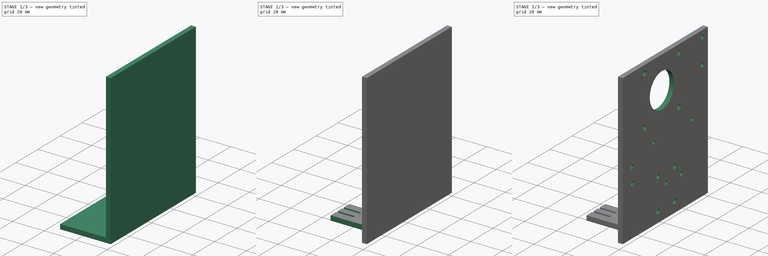
[diagram: build sequence overview — one tinted view per stage of 3, left to right]
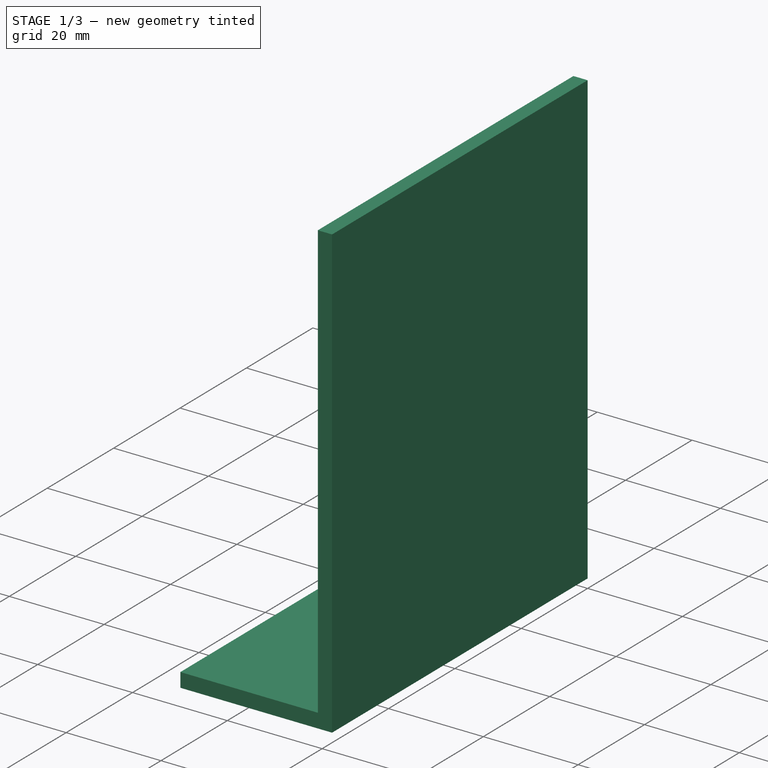
[diagram: stage 1 of 3 — iso view after this stage's code; geometry added in this stage tinted green]
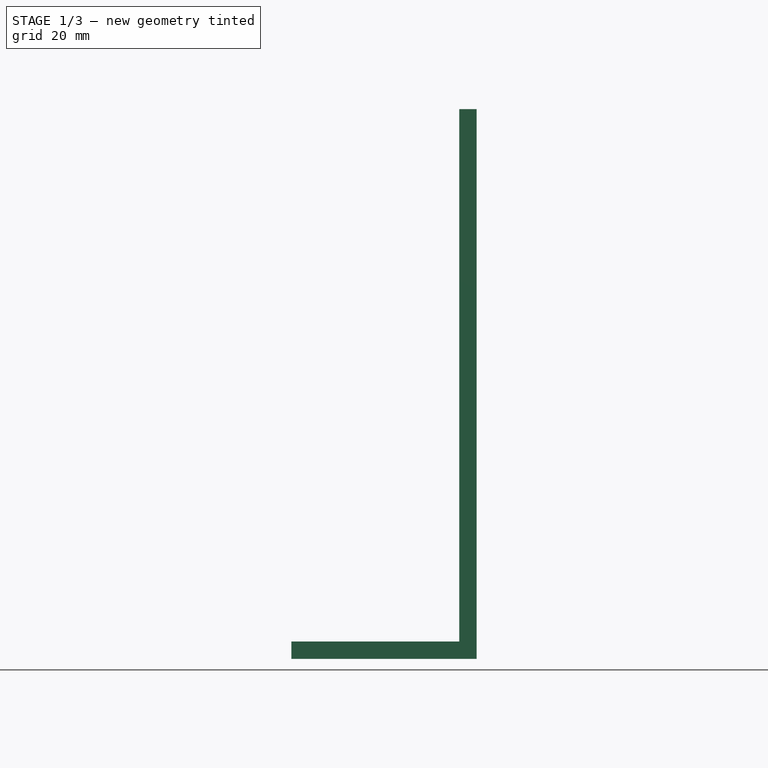
[diagram: stage 1 of 3 — front view after this stage's code; geometry added in this stage tinted green]
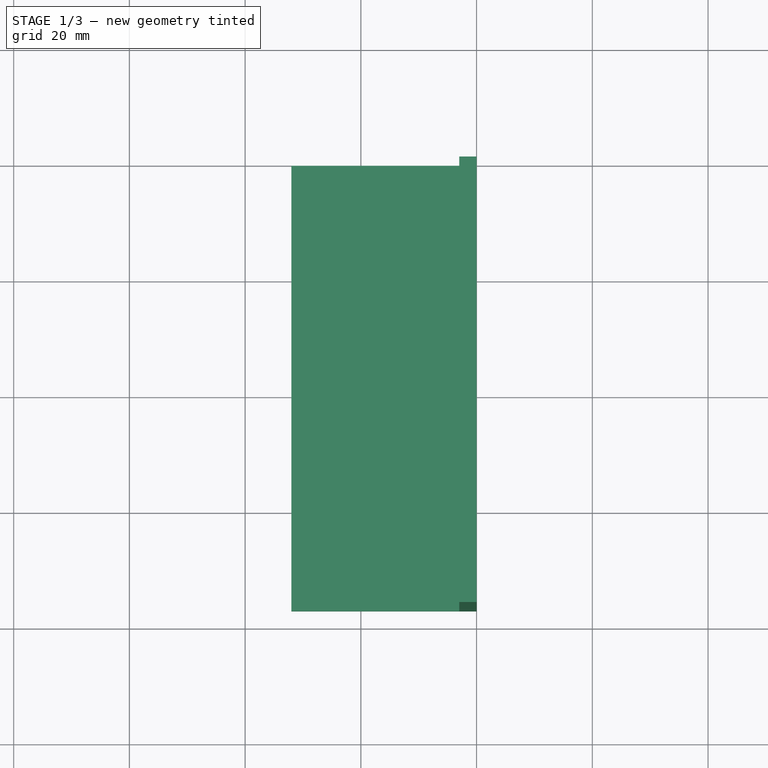
[diagram: stage 1 of 3 — top view after this stage's code; geometry added in this stage tinted green]
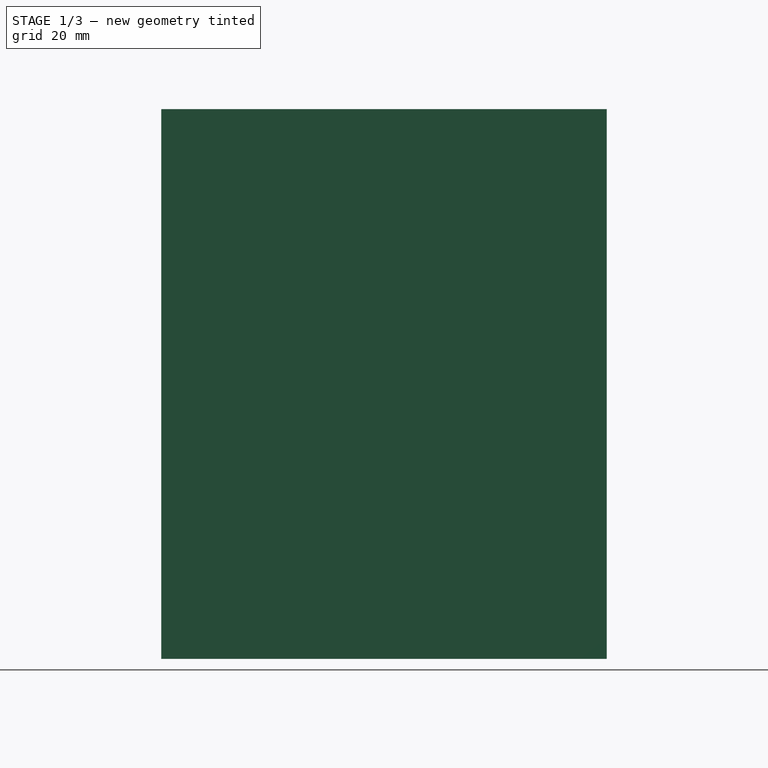
[diagram: stage 1 of 3 — right view after this stage's code; geometry added in this stage tinted green]
FCSTD DOCUMENT  (FreeCAD 0.19R)
Label: 3d_direct
License: All rights reserved
LicenseURL: http://en.wikipedia.org/wiki/All_rights_reserved
objects: Sketcher::SketchObject×5, PartDesign::Pocket×4, PartDesign::Pad×1, PartDesign::Body×1
note: 16 computed .brp shape members not serialized (recipe doc carries the construction recipe); baked Part::Feature solids carry a one-line shape summary decoded from their .brp

FEATURE [Sketcher::SketchObject] Sketch
  FullyConstrained = true
  MapMode = 5
  Placement = pos=(0,0,0) rot=(1,0,0;1.5708rad)
  Support = -> [XZ_Plane]
  sketch-geometry (4):
    g0: LineSegment StartX=0 StartY=0 StartZ=0 EndX=-32 EndY=0 EndZ=0
    g1: LineSegment StartX=-32 StartY=0 StartZ=0 EndX=-32 EndY=95 EndZ=0
    g2: LineSegment StartX=-32 StartY=95 StartZ=0 EndX=0 EndY=95 EndZ=0
    g3: LineSegment StartX=0 StartY=95 StartZ=0 EndX=0 EndY=0 EndZ=0
  constraints (11):
    c: Coincident(g0,g1)
    c: Coincident(g1,g2)
    c: Coincident(g2,g3)
    c: Coincident(g3,g0)
    c: Horizontal(g0)
    c: Horizontal(g2)
    c: Vertical(g1)
    c: Vertical(g3)
    c: Coincident(g0,g-1)
    c: DistanceY(g0,g2) = 95
    c: DistanceX(g0,g0) = 32
FEATURE [PartDesign::Pad] Pad
  Direction = (1,1,1)
  Length = 77
  Length2 = 100
  Placement = pos=(0,0,0) rot=(1,0,0;1.5708rad)
  Profile = -> Sketch
  Type = 0
FEATURE [Sketcher::SketchObject] Sketch001
  ExternalGeometry = -> [Pad]
  FullyConstrained = false
  MapMode = 5
  Placement = pos=(0,0,0) rot=(-1,0,0;1.5708rad)
  Support = -> [Pad]
  sketch-geometry (4):
    g0: LineSegment StartX=-3 StartY=-3 StartZ=0 EndX=-3 EndY=-95 EndZ=0
    g1: LineSegment StartX=-3 StartY=-95 StartZ=0 EndX=-32 EndY=-95 EndZ=0
    g2: LineSegment StartX=-32 StartY=-95 StartZ=0 EndX=-32 EndY=-3 EndZ=0
    g3: LineSegment StartX=-32 StartY=-3 StartZ=0 EndX=-3 EndY=-3 EndZ=0
  constraints (8):
    c: Coincident(g0,g1)
    c: Coincident(g1,g2)
    c: Horizontal(g1)
    c: Vertical(g0)
    c: Vertical(g2)
    c: Coincident(g3,g2)
    c: Coincident(g3,g0)
    c: Horizontal(g3)
FEATURE [PartDesign::Pocket] Pocket
  BaseFeature = -> Pad
  Length = 5
  Length2 = 100
  Placement = pos=(0,0,0) rot=(1,0,0;1.5708rad)
  Profile = -> Sketch001
  Type = 1
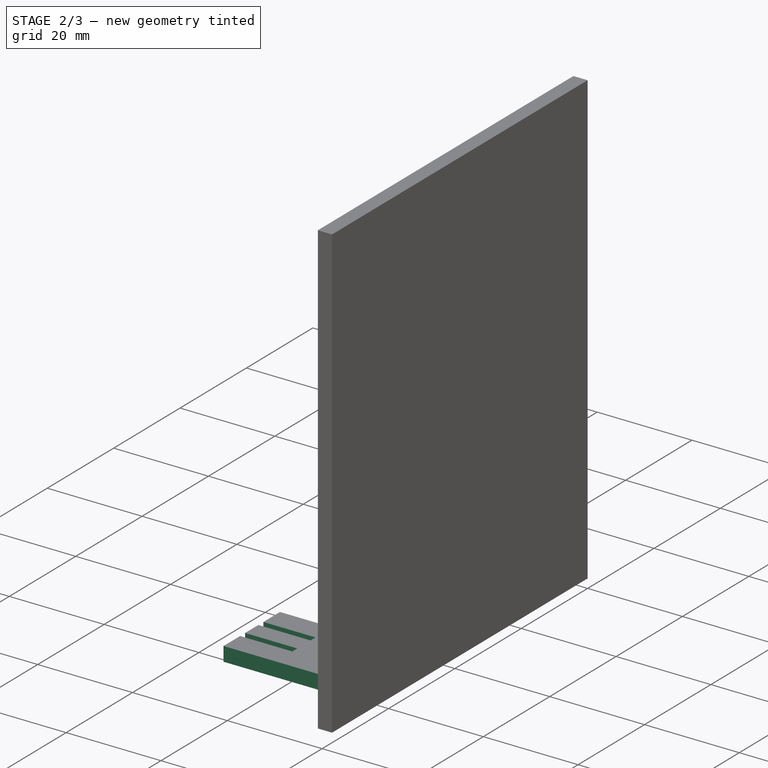
[diagram: stage 2 of 3 — iso view after this stage's code; geometry added in this stage tinted green]
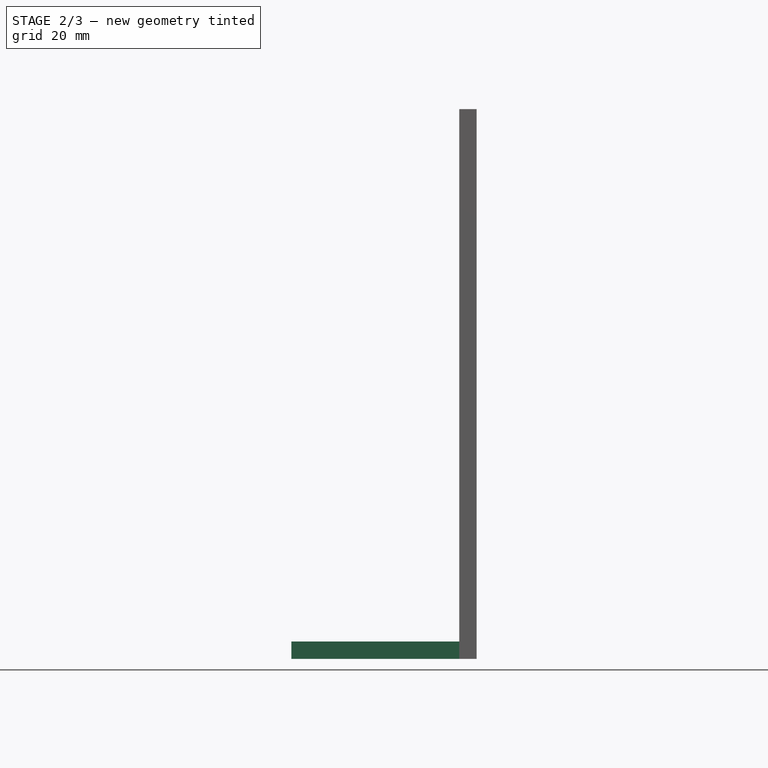
[diagram: stage 2 of 3 — front view after this stage's code; geometry added in this stage tinted green]
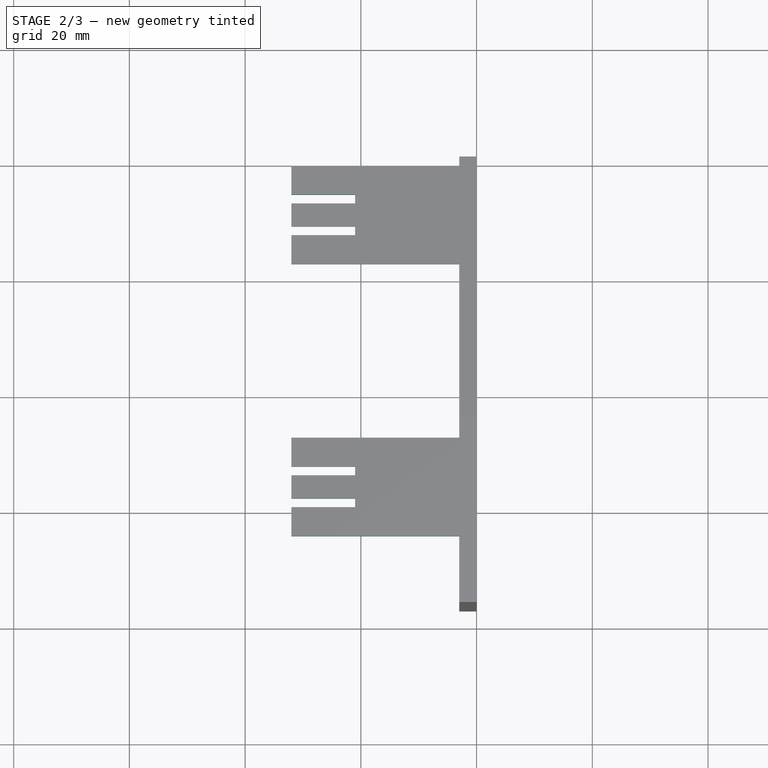
[diagram: stage 2 of 3 — top view after this stage's code; geometry added in this stage tinted green]
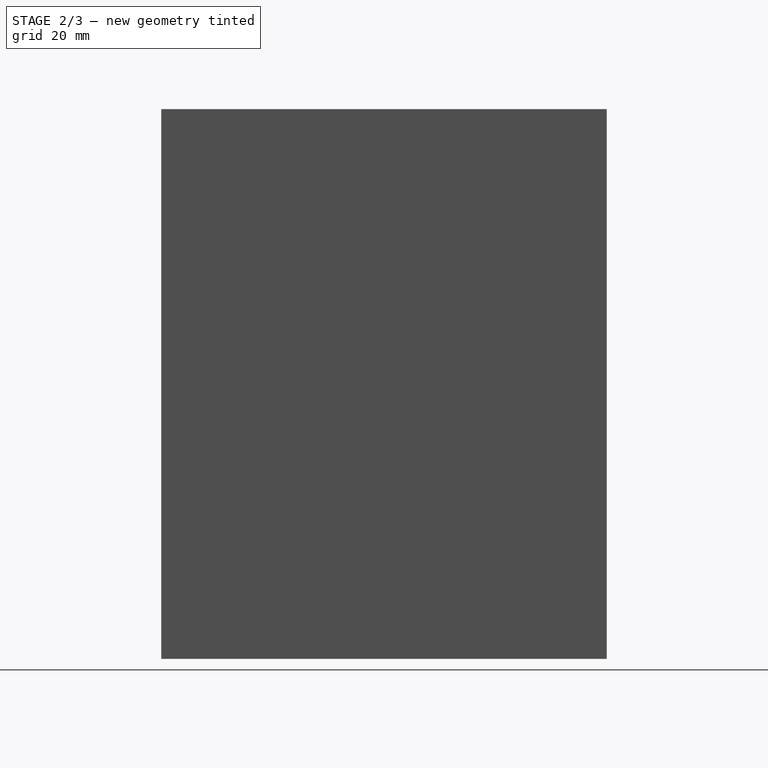
[diagram: stage 2 of 3 — right view after this stage's code; geometry added in this stage tinted green]
FEATURE [Sketcher::SketchObject] Sketch002
  ExternalGeometry = -> [Pocket]
  FullyConstrained = true
  MapMode = 5
  Placement = pos=(0,0,0) rot=(1,0,0;3.14159rad)
  Support = -> [Pocket]
  sketch-geometry (60):
    g0: LineSegment StartX=-32 StartY=0 StartZ=0 EndX=-21 EndY=0 EndZ=0
    g1: LineSegment StartX=-21 StartY=0 StartZ=0 EndX=-21 EndY=17 EndZ=0
    g2: LineSegment StartX=-21 StartY=17 StartZ=0 EndX=-32 EndY=17 EndZ=0
    g3: LineSegment StartX=-32 StartY=17 StartZ=0 EndX=-32 EndY=0 EndZ=0
    g4: LineSegment StartX=-21 StartY=0 StartZ=0 EndX=-32 EndY=0 EndZ=0
    g5: LineSegment StartX=-32 StartY=0 StartZ=0 EndX=-32 EndY=5 EndZ=0
    g6: LineSegment StartX=-32 StartY=5 StartZ=0 EndX=-21 EndY=5 EndZ=0
    g7: LineSegment StartX=-21 StartY=5 StartZ=0 EndX=-21 EndY=0 EndZ=0
    g8: LineSegment StartX=-21 StartY=17 StartZ=0 EndX=-32 EndY=17 EndZ=0
    g9: LineSegment StartX=-32 StartY=17 StartZ=0 EndX=-32 EndY=12 EndZ=0
    g10: LineSegment StartX=-32 StartY=12 StartZ=0 EndX=-21 EndY=12 EndZ=0
    g11: LineSegment StartX=-21 StartY=12 StartZ=0 EndX=-21 EndY=17 EndZ=0
    g12: LineSegment StartX=-32 StartY=12 StartZ=0 EndX=-21 EndY=12 EndZ=0
    g13: LineSegment StartX=-21 StartY=12 StartZ=0 EndX=-21 EndY=10.5 EndZ=0
    g14: LineSegment StartX=-21 StartY=10.5 StartZ=0 EndX=-32 EndY=10.5 EndZ=0
    g15: LineSegment StartX=-32 StartY=10.5 StartZ=0 EndX=-32 EndY=12 EndZ=0
    g16: LineSegment StartX=-32 StartY=5 StartZ=0 EndX=-21 EndY=5 EndZ=0
    g17: LineSegment StartX=-21 StartY=5 StartZ=0 EndX=-21 EndY=6.5 EndZ=0
    g18: LineSegment StartX=-21 StartY=6.5 StartZ=0 EndX=-32 EndY=6.5 EndZ=0
    g19: LineSegment StartX=-32 StartY=6.5 StartZ=0 EndX=-32 EndY=5 EndZ=0
    g20: LineSegment StartX=-32 StartY=0 StartZ=0 EndX=0 EndY=0 EndZ=0
    g21: LineSegment StartX=0 StartY=0 StartZ=0 EndX=0 EndY=64 EndZ=0
    g22: LineSegment StartX=0 StartY=64 StartZ=0 EndX=-32 EndY=64 EndZ=0
    g23: LineSegment StartX=-32 StartY=64 StartZ=0 EndX=-32 EndY=0 EndZ=0
    g24: LineSegment StartX=-32 StartY=64 StartZ=0 EndX=-21 EndY=64 EndZ=0
    g25: LineSegment StartX=-21 StartY=64 StartZ=0 EndX=-21 EndY=47 EndZ=0
    g26: LineSegment StartX=-21 StartY=47 StartZ=0 EndX=-32 EndY=47 EndZ=0
    g27: LineSegment StartX=-32 StartY=47 StartZ=0 EndX=-32 EndY=64 EndZ=0
    g28: LineSegment StartX=-32 StartY=47 StartZ=0 EndX=-21 EndY=47 EndZ=0
    g29: LineSegment StartX=-21 StartY=47 StartZ=0 EndX=-21 EndY=52 EndZ=0
    g30: LineSegment StartX=-21 StartY=52 StartZ=0 EndX=-32 EndY=52 EndZ=0
    g31: LineSegment StartX=-32 StartY=52 StartZ=0 EndX=-32 EndY=47 EndZ=0
    g32: LineSegment StartX=-32 StartY=64 StartZ=0 EndX=-21 EndY=64 EndZ=0
    g33: LineSegment StartX=-21 StartY=64 StartZ=0 EndX=-21 EndY=59 EndZ=0
    g34: LineSegment StartX=-21 StartY=59 StartZ=0 EndX=-32 EndY=59 EndZ=0
    g35: LineSegment StartX=-32 StartY=59 StartZ=0 EndX=-32 EndY=64 EndZ=0
    g36: LineSegment StartX=-32 StartY=59 StartZ=0 EndX=-21 EndY=59 EndZ=0
    g37: LineSegment StartX=-21 StartY=59 StartZ=0 EndX=-21 EndY=57.5 EndZ=0
    g38: LineSegment StartX=-21 StartY=57.5 StartZ=0 EndX=-32 EndY=57.5 EndZ=0
    g39: LineSegment StartX=-32 StartY=57.5 StartZ=0 EndX=-32 EndY=59 EndZ=0
    g40: LineSegment StartX=-32 StartY=52 StartZ=0 EndX=-21 EndY=52 EndZ=0
    g41: LineSegment StartX=-21 StartY=52 StartZ=0 EndX=-21 EndY=53.5 EndZ=0
    g42: LineSegment StartX=-21 StartY=53.5 StartZ=0 EndX=-32 EndY=53.5 EndZ=0
    g43: LineSegment StartX=-32 StartY=53.5 StartZ=0 EndX=-32 EndY=52 EndZ=0
    g44: LineSegment StartX=0 StartY=0 StartZ=0 EndX=-3 EndY=0 EndZ=0
    g45: LineSegment StartX=-3 StartY=0 StartZ=0 EndX=-3 EndY=17 EndZ=0
    g46: LineSegment StartX=-3 StartY=17 StartZ=0 EndX=0 EndY=17 EndZ=0
    g47: LineSegment StartX=0 StartY=17 StartZ=0 EndX=0 EndY=0 EndZ=0
    g48: LineSegment StartX=-3 StartY=17 StartZ=0 EndX=-32 EndY=17 EndZ=0
    g49: LineSegment StartX=-32 StartY=17 StartZ=0 EndX=-32 EndY=47 EndZ=0
    g50: LineSegment StartX=-32 StartY=47 StartZ=0 EndX=-3 EndY=47 EndZ=0
    g51: LineSegment StartX=-3 StartY=47 StartZ=0 EndX=-3 EndY=17 EndZ=0
    g52: LineSegment StartX=0 StartY=64 StartZ=0 EndX=-3 EndY=64 EndZ=0
    g53: LineSegment StartX=-3 StartY=64 StartZ=0 EndX=-3 EndY=77 EndZ=0
    g54: LineSegment StartX=-3 StartY=77 StartZ=0 EndX=0 EndY=77 EndZ=0
    g55: LineSegment StartX=0 StartY=77 StartZ=0 EndX=0 EndY=64 EndZ=0
    g56: LineSegment StartX=-3 StartY=77 StartZ=0 EndX=-32 EndY=77 EndZ=0
    g57: LineSegment StartX=-32 StartY=77 StartZ=0 EndX=-32 EndY=64 EndZ=0
    g58: LineSegment StartX=-32 StartY=64 StartZ=0 EndX=-3 EndY=64 EndZ=0
    g59: LineSegment StartX=-3 StartY=64 StartZ=0 EndX=-3 EndY=77 EndZ=0
  constraints (163):
    c: Coincident(g0,g1)
    c: Coincident(g1,g2)
    c: Coincident(g2,g3)
    c: Coincident(g3,g0)
    c: Horizontal(g0)
    c: Horizontal(g2)
    c: Vertical(g1)
    c: Vertical(g3)
    c: Coincident(g0,g-4)
    c: DistanceY(g3,g3) = 17
    c: DistanceX(g0,g0) = 11
    c: Coincident(g4,g5)
    c: Coincident(g5,g6)
    c: Coincident(g6,g7)
    c: Coincident(g7,g4)
    c: Horizontal(g4)
    c: Horizontal(g6)
    c: Vertical(g5)
    c: Vertical(g7)
    c: Coincident(g4,g0)
    c: PointOnObject(g5,g3)
    c: Coincident(g8,g9)
    c: Coincident(g9,g10)
    c: Coincident(g10,g11)
    c: Coincident(g11,g8)
    c: Horizontal(g8)
    c: Horizontal(g10)
    c: Vertical(g9)
    c: Vertical(g11)
    c: Coincident(g8,g1)
    c: PointOnObject(g9,g3)
    c: Distance(g6,g0) = 5
    c: Distance(g10,g1) = 5
    c: Coincident(g12,g13)
    c: Coincident(g13,g14)
    c: Coincident(g14,g15)
    c: Coincident(g15,g12)
    c: Horizontal(g12)
    c: Horizontal(g14)
    c: Vertical(g13)
    c: Vertical(g15)
    c: Coincident(g12,g9)
    c: PointOnObject(g13,g1)
    c: Coincident(g16,g17)
    c: Coincident(g17,g18)
    c: Coincident(g18,g19)
    c: Coincident(g19,g16)
    c: Horizontal(g16)
    c: Horizontal(g18)
    c: Vertical(g17)
    c: Vertical(g19)
    c: Coincident(g16,g5)
    c: PointOnObject(g17,g1)
    c: DistanceY(g15,g15) = 1.5
    c: DistanceY(g19,g19) = 1.5
    c: Coincident(g20,g21)
    c: Coincident(g21,g22)
    c: Coincident(g22,g23)
    c: Coincident(g23,g20)
    c: Horizontal(g20)
    c: Horizontal(g22)
    c: Vertical(g21)
    c: Vertical(g23)
    c: Coincident(g20,g0)
    c: PointOnObject(g21,g-2)
    c: DistanceY(g21,g21) = 64
    c: Coincident(g24,g25)
    c: Coincident(g25,g26)
    c: Coincident(g26,g27)
    c: Coincident(g27,g24)
    c: Horizontal(g24)
    c: Horizontal(g26)
    c: Vertical(g25)
    c: Vertical(g27)
    c: Coincident(g24,g22)
    c: DistanceY(g25,g25) = 17
    c: DistanceX(g26,g26) = 11
    c: Coincident(g28,g29)
    c: Coincident(g29,g30)
    c: Coincident(g30,g31)
    c: Coincident(g31,g28)
    c: Horizontal(g28)
    c: Horizontal(g30)
    c: Vertical(g29)
    c: Vertical(g31)
    c: Coincident(g28,g26)
    c: PointOnObject(g29,g25)
    c: Coincident(g32,g33)
    c: Coincident(g33,g34)
    c: Coincident(g34,g35)
    c: Coincident(g35,g32)
    c: Horizontal(g32)
    c: Horizontal(g34)
    c: Vertical(g33)
    c: Vertical(g35)
    c: Coincident(g32,g22)
    c: PointOnObject(g33,g25)
    c: Distance(g29,g25) = 5
    c: Distance(g33,g24) = 5
    c: Coincident(g36,g37)
    c: Coincident(g37,g38)
    c: Coincident(g38,g39)
    c: Coincident(g39,g36)
    c: Horizontal(g36)
    c: Horizontal(g38)
    c: Vertical(g37)
    c: Vertical(g39)
    c: Coincident(g36,g34)
    c: PointOnObject(g37,g25)
    c: Coincident(g40,g41)
    c: Coincident(g41,g42)
    c: Coincident(g42,g43)
    c: Coincident(g43,g40)
    c: Horizontal(g40)
    c: Horizontal(g42)
    c: Vertical(g41)
    c: Vertical(g43)
    c: Coincident(g40,g30)
    c: PointOnObject(g41,g25)
    c: DistanceY(g43,g43) = 1.5
    c: DistanceY(g39,g39) = 1.5
    c: Coincident(g44,g45)
    c: Coincident(g45,g46)
    c: Coincident(g46,g47)
    c: Coincident(g47,g44)
    c: Horizontal(g44)
    c: Horizontal(g46)
    c: Vertical(g45)
    c: Vertical(g47)
    c: Coincident(g44,g-1)
    c: DistanceY(g45,g45) = 17
    c: DistanceX(g46,g46) = 3
    c: Coincident(g48,g49)
    c: Coincident(g49,g50)
    c: Coincident(g50,g51)
    c: Coincident(g51,g48)
    c: Horizontal(g48)
    c: Horizontal(g50)
    c: Vertical(g49)
    c: Vertical(g51)
    c: Coincident(g48,g45)
    c: Coincident(g49,g26)
    c: Coincident(g52,g53)
    c: Coincident(g53,g54)
    c: Coincident(g54,g55)
    c: Coincident(g55,g52)
    c: Horizontal(g52)
    c: Horizontal(g54)
    c: Vertical(g53)
    c: Vertical(g55)
    c: Coincident(g52,g21)
    c: PointOnObject(g53,g-3)
    c: DistanceX(g54,g54) = 3
    c: Coincident(g56,g57)
    c: Coincident(g57,g58)
    c: Coincident(g58,g59)
    c: Coincident(g59,g56)
    c: Horizontal(g56)
    c: Horizontal(g58)
    c: Vertical(g57)
    c: Vertical(g59)
    c: Coincident(g56,g53)
    c: Coincident(g57,g22)
FEATURE [PartDesign::Pocket] Pocket001
  BaseFeature = -> Pocket
  Length = 5
  Length2 = 100
  Placement = pos=(0,0,0) rot=(1,0,0;1.5708rad)
  Profile = -> Sketch002
  Type = 1
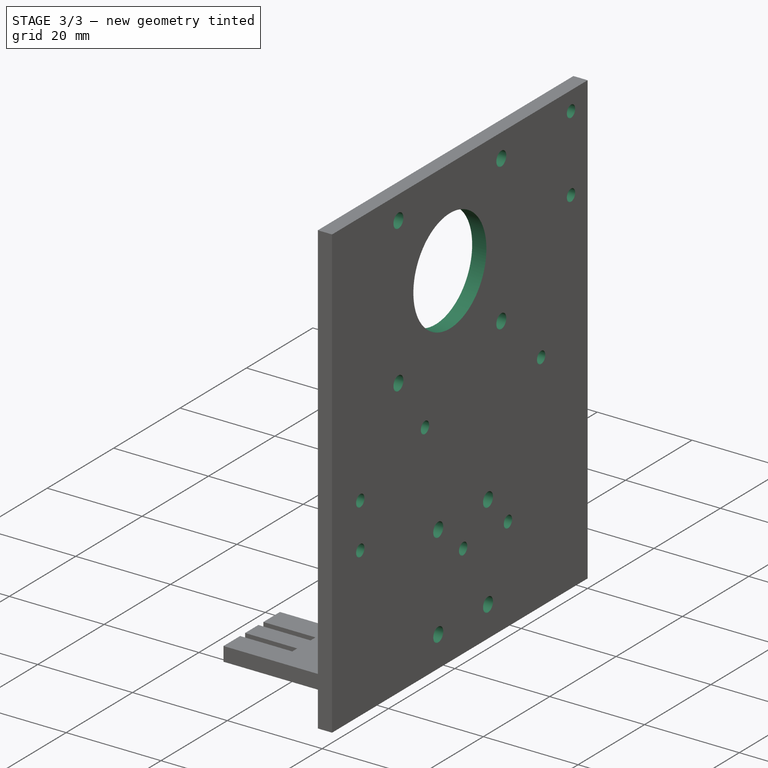
[diagram: stage 3 of 3 — iso view after this stage's code; geometry added in this stage tinted green]
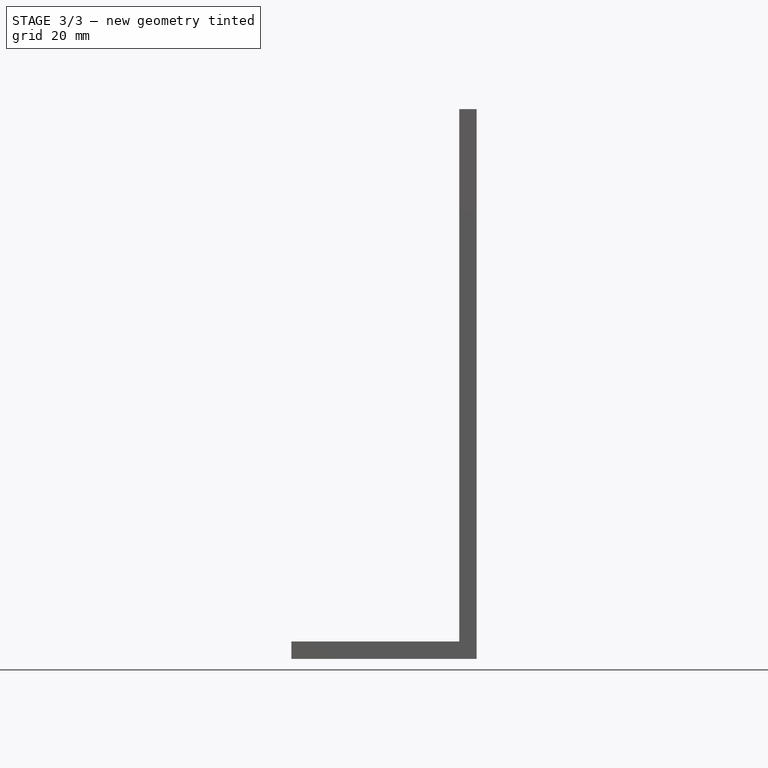
[diagram: stage 3 of 3 — front view after this stage's code; geometry added in this stage tinted green]
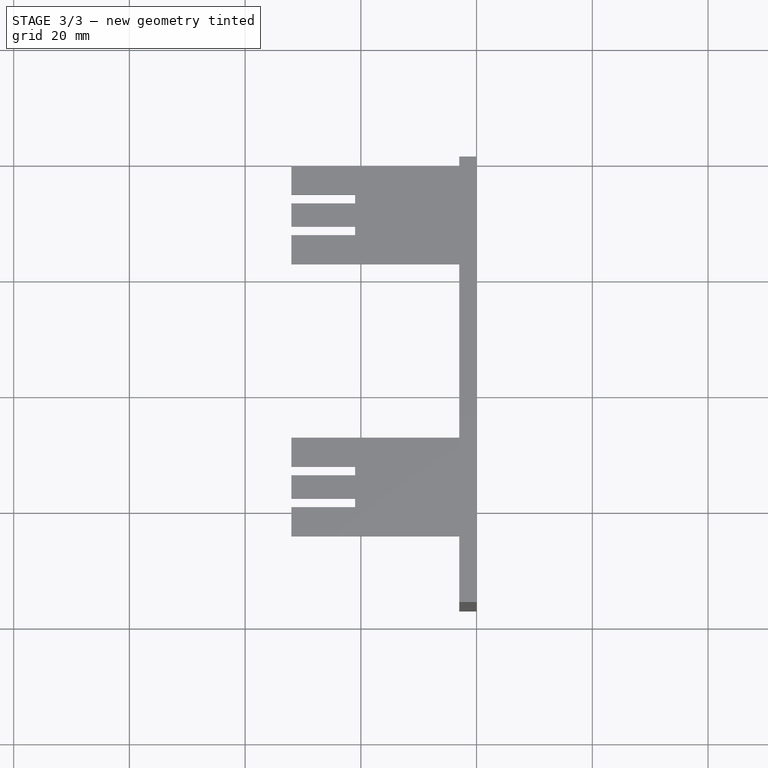
[diagram: stage 3 of 3 — top view after this stage's code; geometry added in this stage tinted green]
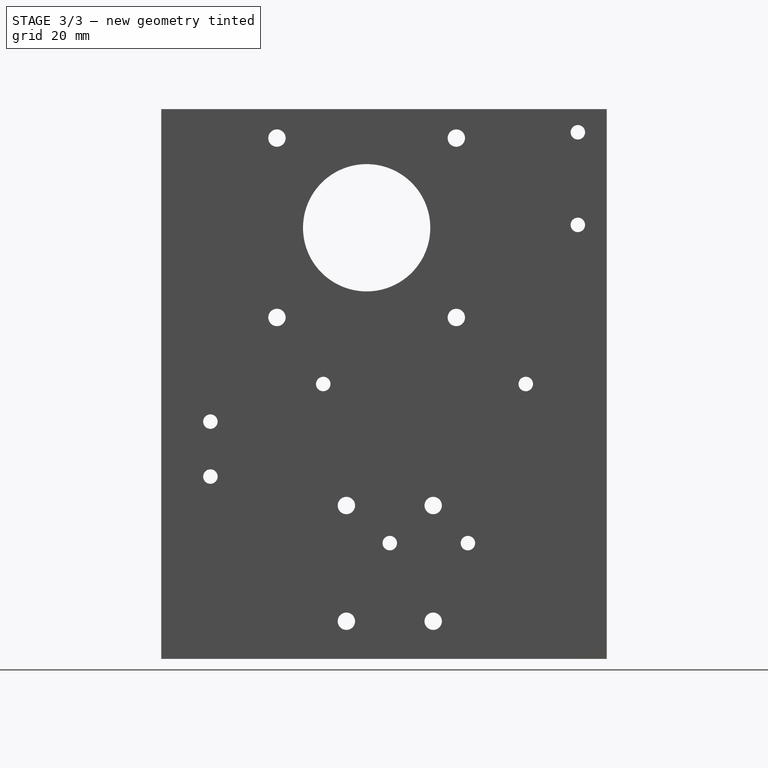
[diagram: stage 3 of 3 — right view after this stage's code; geometry added in this stage tinted green]
FEATURE [Sketcher::SketchObject] Sketch003
  FullyConstrained = true
  MapMode = 5
  Placement = pos=(0,0,0) rot=(0.707107,0,0.707107;3.14159rad)
  Support = -> [Pocket001]
  sketch-geometry (52):
    g0: LineSegment StartX=0 StartY=0 StartZ=0 EndX=20 EndY=0 EndZ=0
    g1: LineSegment StartX=20 StartY=0 StartZ=0 EndX=20 EndY=24 EndZ=0
    g2: LineSegment StartX=20 StartY=24 StartZ=0 EndX=0 EndY=24 EndZ=0
    g3: LineSegment StartX=0 StartY=24 StartZ=0 EndX=0 EndY=0 EndZ=0
    g4: LineSegment StartX=0 StartY=24 StartZ=0 EndX=20 EndY=24 EndZ=0
    g5: LineSegment StartX=20 StartY=24 StartZ=0 EndX=20 EndY=37.5 EndZ=0
    g6: LineSegment StartX=20 StartY=37.5 StartZ=0 EndX=0 EndY=37.5 EndZ=0
    g7: LineSegment StartX=0 StartY=37.5 StartZ=0 EndX=0 EndY=24 EndZ=0
    g8: Circle CenterX=20 CenterY=37.5 CenterZ=0 NormalX=0 NormalY=0 NormalZ=1 AngleXU=0 Radius=1.25
    g9: Circle CenterX=20 CenterY=24 CenterZ=0 NormalX=0 NormalY=0 NormalZ=1 AngleXU=0 Radius=1.25
    g10: LineSegment StartX=0 StartY=0 StartZ=0 EndX=47.5 EndY=0 EndZ=0
    g11: LineSegment StartX=47.5 StartY=0 StartZ=0 EndX=47.5 EndY=14 EndZ=0
    g12: LineSegment StartX=47.5 StartY=14 StartZ=0 EndX=0 EndY=14 EndZ=0
    g13: LineSegment StartX=0 StartY=14 StartZ=0 EndX=0 EndY=0 EndZ=0
    g14: LineSegment StartX=0 StartY=14 StartZ=0 EndX=47.5 EndY=14 EndZ=0
    g15: LineSegment StartX=47.5 StartY=14 StartZ=0 EndX=47.5 EndY=49 EndZ=0
    g16: LineSegment StartX=47.5 StartY=49 StartZ=0 EndX=0 EndY=49 EndZ=0
    g17: LineSegment StartX=0 StartY=49 StartZ=0 EndX=0 EndY=14 EndZ=0
    g18: Circle CenterX=47.5 CenterY=49 CenterZ=0 NormalX=0 NormalY=0 NormalZ=1 AngleXU=0 Radius=1.25
    g19: Circle CenterX=47.5 CenterY=14 CenterZ=0 NormalX=0 NormalY=0 NormalZ=1 AngleXU=0 Radius=1.25
    g20: LineSegment StartX=0 StartY=0 StartZ=0 EndX=59 EndY=0 EndZ=0
    g21: LineSegment StartX=59 StartY=0 StartZ=0 EndX=59 EndY=26 EndZ=0
    g22: LineSegment StartX=59 StartY=26 StartZ=0 EndX=0 EndY=26 EndZ=0
    g23: LineSegment StartX=0 StartY=26 StartZ=0 EndX=0 EndY=0 EndZ=0
    g24: LineSegment StartX=59 StartY=26 StartZ=0 EndX=90 EndY=26 EndZ=0
    g25: LineSegment StartX=90 StartY=26 StartZ=0 EndX=90 EndY=57 EndZ=0
    g26: LineSegment StartX=90 StartY=57 StartZ=0 EndX=59 EndY=57 EndZ=0
    g27: LineSegment StartX=59 StartY=57 StartZ=0 EndX=59 EndY=26 EndZ=0
    g28: Circle CenterX=59 CenterY=57 CenterZ=0 NormalX=0 NormalY=0 NormalZ=1 AngleXU=0 Radius=1.5
    g29: Circle CenterX=90 CenterY=57 CenterZ=0 NormalX=0 NormalY=0 NormalZ=1 AngleXU=0 Radius=1.5
    g30: Circle CenterX=90 CenterY=26 CenterZ=0 NormalX=0 NormalY=0 NormalZ=1 AngleXU=0 Radius=1.5
    g31: Circle CenterX=59 CenterY=26 CenterZ=0 NormalX=0 NormalY=0 NormalZ=1 AngleXU=0 Radius=1.5
    g32: LineSegment StartX=59 StartY=57 StartZ=0 EndX=90 EndY=26 EndZ=0
    g33: LineSegment StartX=90 StartY=57 StartZ=0 EndX=59 EndY=26 EndZ=0
    g34: Circle CenterX=74.5 CenterY=41.5 CenterZ=0 NormalX=0 NormalY=0 NormalZ=1 AngleXU=0 Radius=11
    g35: LineSegment StartX=0 StartY=0 StartZ=0 EndX=75 EndY=0 EndZ=0
    g36: LineSegment StartX=75 StartY=0 StartZ=0 EndX=75 EndY=5 EndZ=0
    g37: LineSegment StartX=75 StartY=5 StartZ=0 EndX=0 EndY=5 EndZ=0
    g38: LineSegment StartX=0 StartY=5 StartZ=0 EndX=0 EndY=0 EndZ=0
    g39: LineSegment StartX=75 StartY=0 StartZ=0 EndX=91 EndY=0 EndZ=0
    g40: LineSegment StartX=91 StartY=0 StartZ=0 EndX=91 EndY=5 EndZ=0
    g41: LineSegment StartX=91 StartY=5 StartZ=0 EndX=75 EndY=5 EndZ=0
    g42: LineSegment StartX=75 StartY=5 StartZ=0 EndX=75 EndY=0 EndZ=0
    g43: Circle CenterX=75 CenterY=5 CenterZ=0 NormalX=0 NormalY=0 NormalZ=1 AngleXU=0 Radius=1.25
    g44: Circle CenterX=91 CenterY=5 CenterZ=0 NormalX=0 NormalY=0 NormalZ=1 AngleXU=0 Radius=1.25
    g45: LineSegment StartX=0 StartY=0 StartZ=0 EndX=31.5 EndY=0 EndZ=0
    g46: LineSegment StartX=31.5 StartY=0 StartZ=0 EndX=31.5 EndY=68.5 EndZ=0
    g47: LineSegment StartX=31.5 StartY=68.5 StartZ=0 EndX=0 EndY=68.5 EndZ=0
    g48: LineSegment StartX=0 StartY=68.5 StartZ=0 EndX=0 EndY=0 EndZ=0
    g49: LineSegment StartX=31.5 StartY=68.5 StartZ=0 EndX=41 EndY=68.5 EndZ=0
    g50: Circle CenterX=31.5 CenterY=68.5 CenterZ=0 NormalX=0 NormalY=0 NormalZ=1 AngleXU=0 Radius=1.25
    g51: Circle CenterX=41 CenterY=68.5 CenterZ=0 NormalX=0 NormalY=0 NormalZ=1 AngleXU=0 Radius=1.25
  constraints (133):
    c: Coincident(g0,g1)
    c: Coincident(g1,g2)
    c: Coincident(g2,g3)
    c: Coincident(g3,g0)
    c: Horizontal(g0)
    c: Horizontal(g2)
    c: Vertical(g1)
    c: Vertical(g3)
    c: Coincident(g0,g-1)
    c: DistanceX(g0,g0) = 20
    c: DistanceY(g3,g3) = 24
    c: Coincident(g4,g5)
    c: Coincident(g5,g6)
    c: Coincident(g6,g7)
    c: Coincident(g7,g4)
    c: Horizontal(g4)
    c: Horizontal(g6)
    c: Vertical(g5)
    c: Vertical(g7)
    c: Coincident(g4,g2)
    c: DistanceY(g7,g7) = 13.5
    c: DistanceX(g6,g6) = 20
    c: Coincident(g8,g5)
    c: Coincident(g9,g1)
    c: Diameter(g8) = 2.5
    c: Diameter(g9) = 2.5
    c: Coincident(g10,g11)
    c: Coincident(g11,g12)
    c: Coincident(g12,g13)
    c: Coincident(g13,g10)
    c: Horizontal(g10)
    c: Horizontal(g12)
    c: Vertical(g11)
    c: Vertical(g13)
    c: Coincident(g10,g-1)
    c: DistanceX(g10,g10) = 47.5
    c: DistanceY(g11,g11) = 14
    c: Coincident(g14,g15)
    c: Coincident(g15,g16)
    c: Coincident(g16,g17)
    c: Coincident(g17,g14)
    c: Horizontal(g14)
    c: Horizontal(g16)
    c: Vertical(g15)
    c: Vertical(g17)
    c: Coincident(g14,g12)
    c: DistanceY(g15,g15) = 35
    c: DistanceX(g16,g16) = 47.5
    c: Coincident(g18,g15)
    c: Coincident(g19,g11)
    c: Diameter(g19) = 2.5
    c: Diameter(g18) = 2.5
    c: Coincident(g20,g21)
    c: Coincident(g21,g22)
    c: Coincident(g22,g23)
    c: Coincident(g23,g20)
    c: Horizontal(g20)
    c: Horizontal(g22)
    c: Vertical(g21)
    c: Vertical(g23)
    c: Coincident(g20,g-1)
    c: DistanceY(g21,g21) = 26
    c: DistanceX(g22,g22) = 59
    c: Coincident(g24,g25)
    c: Coincident(g25,g26)
    c: Coincident(g26,g27)
    c: Coincident(g27,g24)
    c: Horizontal(g24)
    c: Horizontal(g26)
    c: Vertical(g25)
    c: Vertical(g27)
    c: Coincident(g24,g21)
    c: DistanceX(g24,g24) = 31
    c: DistanceY(g25,g25) = 31
    c: Coincident(g28,g26)
    c: Coincident(g29,g25)
    c: Coincident(g30,g24)
    c: Coincident(g31,g21)
    c: Diameter(g31) = 3
    c: Equal(g31,g30)
    c: Equal(g31,g29)
    c: Equal(g31,g28)
    c: Coincident(g32,g28)
    c: Coincident(g32,g30)
    c: Coincident(g33,g29)
    c: Coincident(g33,g31)
    c: PointOnObject(g34,g33)
    c: Diameter(g34) = 22
    c: PointOnObject(g34,g32)
    c: Coincident(g35,g36)
    c: Coincident(g36,g37)
    c: Coincident(g37,g38)
    c: Coincident(g38,g35)
    c: Horizontal(g35)
    c: Horizontal(g37)
    c: Vertical(g36)
    c: Vertical(g38)
    c: Coincident(g35,g-1)
    c: DistanceX(g35,g35) = 75
    c: DistanceY(g36,g36) = 5
    c: Coincident(g39,g40)
    c: Coincident(g40,g41)
    c: Coincident(g41,g42)
    c: Coincident(g42,g39)
    c: Horizontal(g39)
    c: Horizontal(g41)
    c: Vertical(g40)
    c: Vertical(g42)
    c: Coincident(g39,g35)
    c: DistanceX(g41,g41) = 16
    c: DistanceY(g40,g40) = 5
    c: Coincident(g43,g36)
    c: Coincident(g44,g40)
    c: Diameter(g43) = 2.5
    c: Equal(g43,g44)
    c: Coincident(g45,g46)
    c: Coincident(g46,g47)
    c: Coincident(g47,g48)
    c: Coincident(g48,g45)
    c: Horizontal(g45)
    c: Horizontal(g47)
    c: Vertical(g46)
    c: Vertical(g48)
    c: Coincident(g45,g-1)
    c: DistanceX(g47,g47) = 31.5
    c: DistanceY(g46,g46) = 68.5
    c: Coincident(g49,g46)
    c: Horizontal(g49)
    c: Distance(g49) = 9.5
    c: Coincident(g50,g46)
    c: Coincident(g51,g49)
    c: Diameter(g51) = 2.5
    c: Diameter(g50) = 2.5
FEATURE [PartDesign::Pocket] Pocket002
  BaseFeature = -> Pocket001
  Length = 5
  Length2 = 100
  Placement = pos=(0,0,0) rot=(1,0,0;1.5708rad)
  Profile = -> Sketch003
  Type = 1
FEATURE [Sketcher::SketchObject] Sketch004
  FullyConstrained = true
  MapMode = 5
  Placement = pos=(0,0,0) rot=(0.707107,0,0.707107;3.14159rad)
  Support = -> [Pocket002]
  sketch-geometry (12):
    g0: LineSegment StartX=0 StartY=0 StartZ=0 EndX=6.5 EndY=0 EndZ=0
    g1: LineSegment StartX=6.5 StartY=0 StartZ=0 EndX=6.5 EndY=30 EndZ=0
    g2: LineSegment StartX=6.5 StartY=30 StartZ=0 EndX=0 EndY=30 EndZ=0
    g3: LineSegment StartX=0 StartY=30 StartZ=0 EndX=0 EndY=0 EndZ=0
    g4: LineSegment StartX=6.5 StartY=30 StartZ=0 EndX=26.5 EndY=30 EndZ=0
    g5: LineSegment StartX=26.5 StartY=30 StartZ=0 EndX=26.5 EndY=45 EndZ=0
    g6: LineSegment StartX=26.5 StartY=45 StartZ=0 EndX=6.5 EndY=45 EndZ=0
    g7: LineSegment StartX=6.5 StartY=45 StartZ=0 EndX=6.5 EndY=30 EndZ=0
    g8: Circle CenterX=6.5 CenterY=30 CenterZ=0 NormalX=0 NormalY=0 NormalZ=1 AngleXU=0 Radius=1.5
    g9: Circle CenterX=26.5 CenterY=30 CenterZ=0 NormalX=0 NormalY=0 NormalZ=1 AngleXU=0 Radius=1.5
    g10: Circle CenterX=26.5 CenterY=45 CenterZ=0 NormalX=0 NormalY=0 NormalZ=1 AngleXU=0 Radius=1.5
    g11: Circle CenterX=6.5 CenterY=45 CenterZ=0 NormalX=0 NormalY=0 NormalZ=1 AngleXU=0 Radius=1.5
  constraints (30):
    c: Coincident(g0,g1)
    c: Coincident(g1,g2)
    c: Coincident(g2,g3)
    c: Coincident(g3,g0)
    c: Horizontal(g0)
    c: Horizontal(g2)
    c: Vertical(g1)
    c: Vertical(g3)
    c: Coincident(g0,g-1)
    c: DistanceX(g0,g0) = 6.5
    c: DistanceY(g3,g3) = 30
    c: Coincident(g4,g5)
    c: Coincident(g5,g6)
    c: Coincident(g6,g7)
    c: Coincident(g7,g4)
    c: Horizontal(g4)
    c: Horizontal(g6)
    c: Vertical(g5)
    c: Vertical(g7)
    c: Coincident(g4,g1)
    c: DistanceX(g4,g4) = 20
    c: DistanceY(g5,g5) = 15
    c: Coincident(g8,g1)
    c: Coincident(g9,g4)
    c: Coincident(g10,g5)
    c: Coincident(g11,g6)
    c: Diameter(g9) = 3
    c: Equal(g9,g10)
    c: Equal(g9,g11)
    c: Equal(g9,g8)
FEATURE [PartDesign::Pocket] Pocket003
  BaseFeature = -> Pocket002
  Length = 5
  Length2 = 100
  Placement = pos=(0,0,0) rot=(1,0,0;1.5708rad)
  Profile = -> Sketch004
  Type = 1
FEATURE [PartDesign::Body] Body
  Group = -> [Sketch,Pad,Sketch001,Pocket,Sketch002,Pocket001,Sketch003,Pocket002,Sketch004,Pocket003]
  Origin = -> Origin
  Tip = -> Pocket003
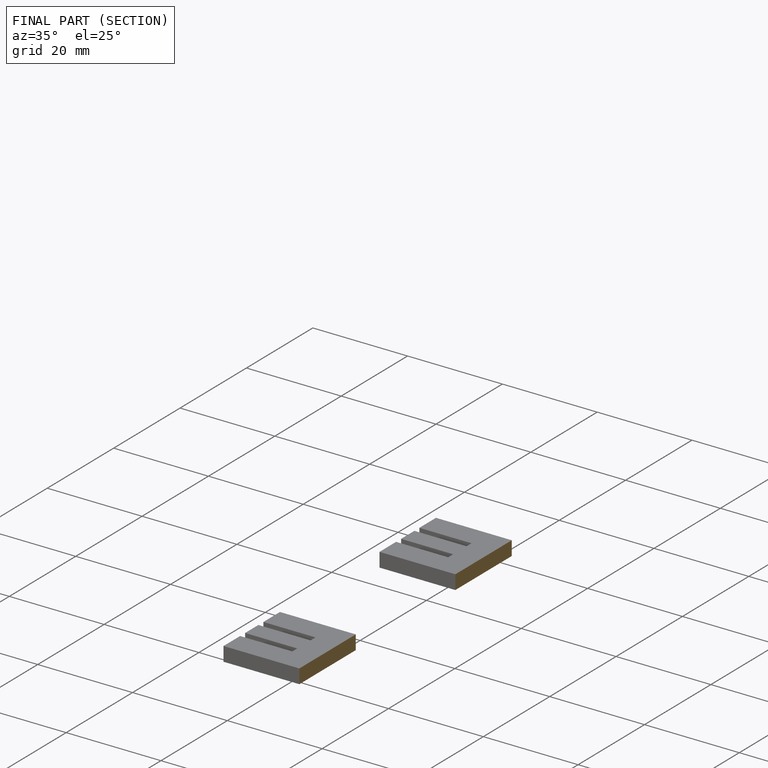
[diagram: finished part — half-section view (interior)]
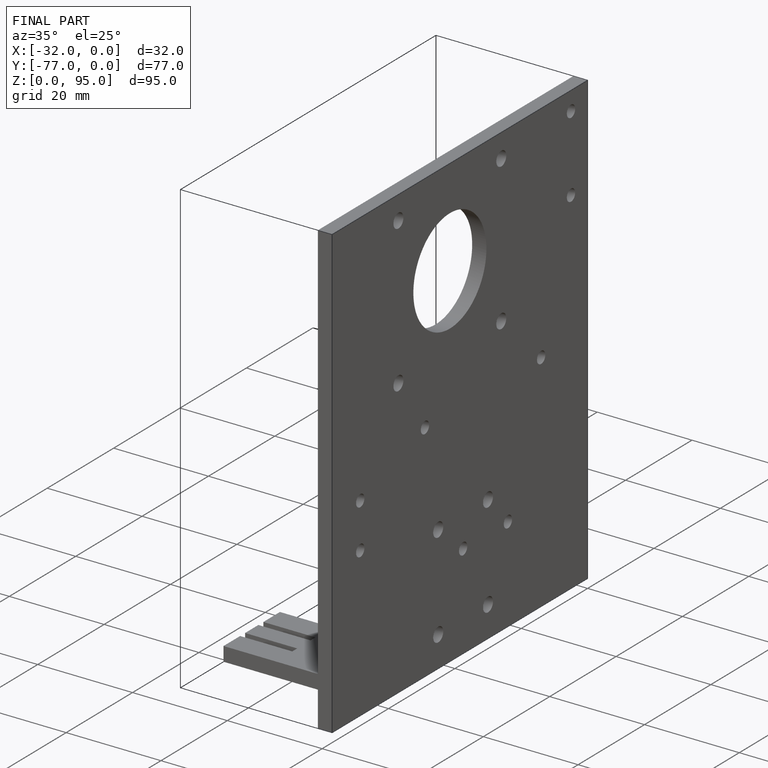
[diagram: finished part — iso view with bounding-box wireframe]
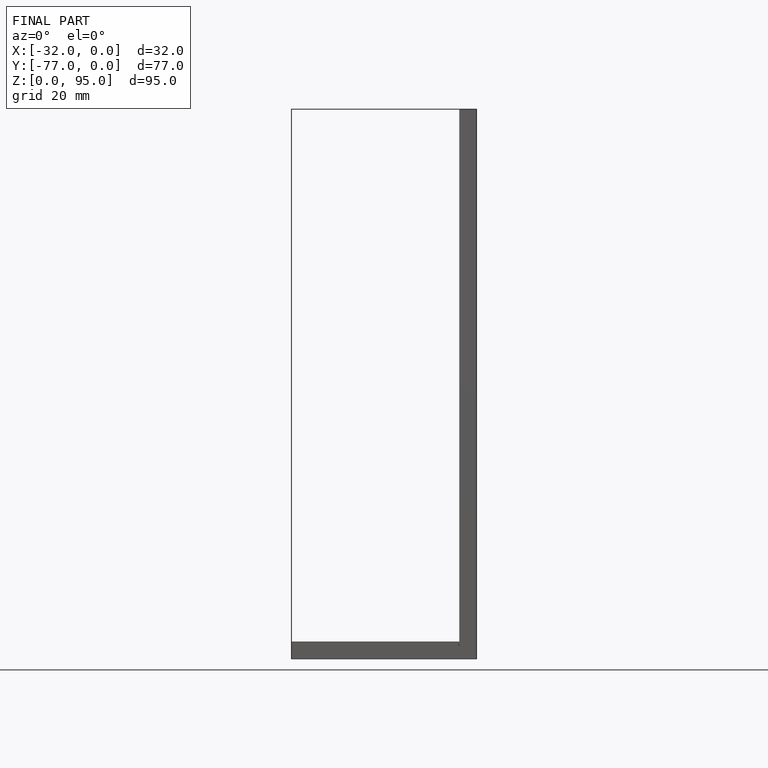
[diagram: finished part — front view with bounding-box wireframe]
